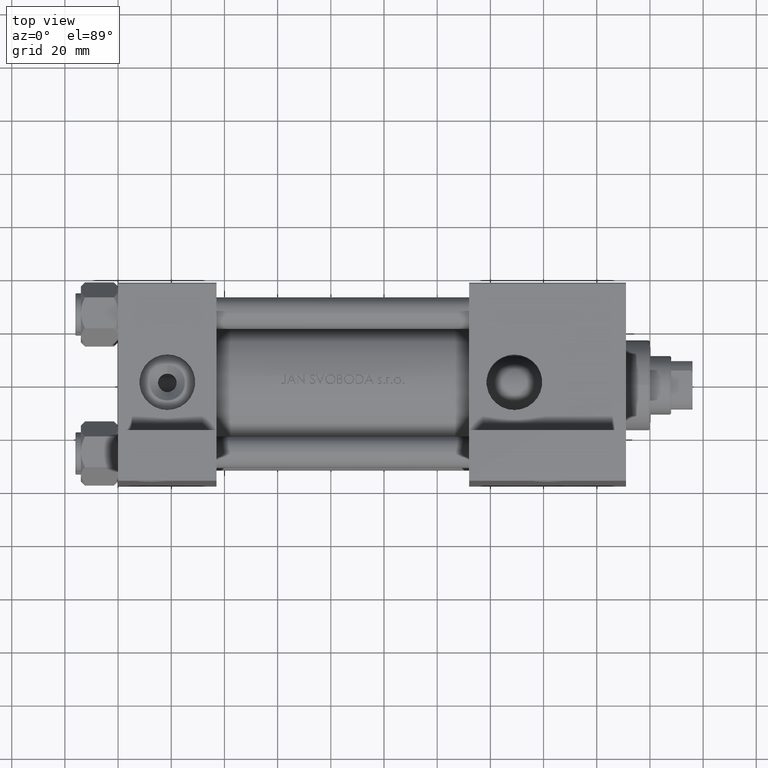
[diagram: clean part render]
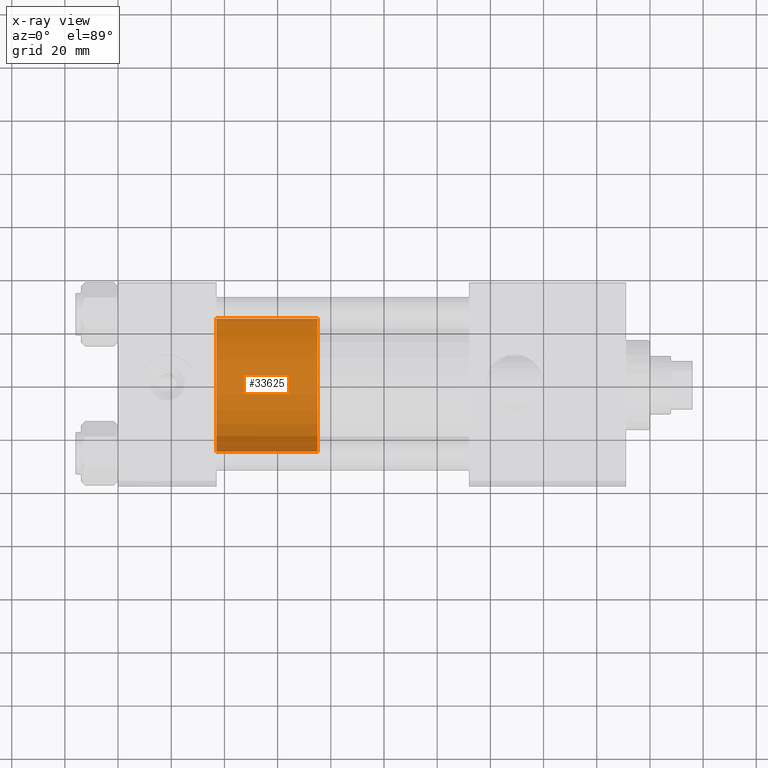
[diagram: x-ray — body ghosted, one internal face saturated and labeled with its STEP entity id]
A machine part, top view, then the same camera in x-ray: the body is ghosted and one INTERNAL B-rep face — a face not visible from any outside direction — is saturated and labeled: STEP entity #33625.
In plain terms, the highlighted cylindrical surface (partial cylindrical patch) has radius 25 mm, axis along (-1, 0, 0).
Its self-contained STEP definition (entity closure, byte-faithful):
#944 = DIRECTION ( 'NONE',  ( -0.000000000000000000, -0.000000000000000000, -1.000000000000000000 ) ) ;
#1497 = CARTESIAN_POINT ( 'NONE',  ( 0.000000000000000000, 0.000000000000000000, 38.00000000000000000 ) ) ;
#2960 = VERTEX_POINT ( 'NONE', #37292 ) ;
#3109 = VECTOR ( 'NONE', #13302, 1000.000000000000000 ) ;
#3384 = VECTOR ( 'NONE', #6064, 1000.000000000000000 ) ;
#3459 = CARTESIAN_POINT ( 'NONE',  ( 25.00000000000000000, 3.061616997868383043E-15, 38.00000000000000000 ) ) ;
#6064 = DIRECTION ( 'NONE',  ( -0.000000000000000000, -0.000000000000000000, -1.000000000000000000 ) ) ;
#7923 = DIRECTION ( 'NONE',  ( -1.000000000000000000, 0.000000000000000000, 0.000000000000000000 ) ) ;
#12243 = EDGE_CURVE ( 'NONE', #30046, #45989, #35740, .T. ) ;
#12803 = CARTESIAN_POINT ( 'NONE',  ( 25.00000000000000000, 3.061616997868383043E-15, 38.00000000000000000 ) ) ;
#12943 = DIRECTION ( 'NONE',  ( 1.000000000000000000, 0.000000000000000000, 0.000000000000000000 ) ) ;
#13302 = DIRECTION ( 'NONE',  ( -0.000000000000000000, -0.000000000000000000, -1.000000000000000000 ) ) ;
#15268 = CARTESIAN_POINT ( 'NONE',  ( -25.00000000000000000, 0.000000000000000000, 38.00000000000000000 ) ) ;
#15698 = DIRECTION ( 'NONE',  ( 0.000000000000000000, 0.000000000000000000, 1.000000000000000000 ) ) ;
#16725 = CIRCLE ( 'NONE', #44567, 25.00000000000000000 ) ;
#20924 = DIRECTION ( 'NONE',  ( 0.000000000000000000, 0.000000000000000000, 1.000000000000000000 ) ) ;
#24662 = CARTESIAN_POINT ( 'NONE',  ( 0.000000000000000000, 0.000000000000000000, 0.000000000000000000 ) ) ;
#26400 = ORIENTED_EDGE ( 'NONE', *, *, #36727, .F. ) ;
#28165 = DIRECTION ( 'NONE',  ( 1.000000000000000000, 0.000000000000000000, 0.000000000000000000 ) ) ;
#28850 = ORIENTED_EDGE ( 'NONE', *, *, #12243, .T. ) ;
#30046 = VERTEX_POINT ( 'NONE', #3459 ) ;
#33135 = EDGE_CURVE ( 'NONE', #45989, #2960, #16725, .T. ) ;
#33220 = CARTESIAN_POINT ( 'NONE',  ( 25.00000000000000000, 3.061616997868383043E-15, 0.000000000000000000 ) ) ;
#33625 = ADVANCED_FACE ( 'NONE', ( #46019 ), #35318, .T. ) ;
#35318 = CYLINDRICAL_SURFACE ( 'NONE', #46058, 25.00000000000000000 ) ;
#35740 = LINE ( 'NONE', #12803, #3109 ) ;
#36128 = EDGE_LOOP ( 'NONE', ( #26400, #28850, #36708, #47472 ) ) ;
#36708 = ORIENTED_EDGE ( 'NONE', *, *, #33135, .T. ) ;
#36727 = EDGE_CURVE ( 'NONE', #30046, #38453, #40623, .T. ) ;
#37292 = CARTESIAN_POINT ( 'NONE',  ( -25.00000000000000000, 0.000000000000000000, 0.000000000000000000 ) ) ;
#38453 = VERTEX_POINT ( 'NONE', #15268 ) ;
#39312 = CARTESIAN_POINT ( 'NONE',  ( 0.000000000000000000, 0.000000000000000000, 38.00000000000000000 ) ) ;
#40430 = CARTESIAN_POINT ( 'NONE',  ( -25.00000000000000000, 0.000000000000000000, 38.00000000000000000 ) ) ;
#40623 = CIRCLE ( 'NONE', #41405, 25.00000000000000000 ) ;
#41405 = AXIS2_PLACEMENT_3D ( 'NONE', #1497, #15698, #12943 ) ;
#44567 = AXIS2_PLACEMENT_3D ( 'NONE', #24662, #20924, #28165 ) ;
#45129 = EDGE_CURVE ( 'NONE', #38453, #2960, #47655, .T. ) ;
#45989 = VERTEX_POINT ( 'NONE', #33220 ) ;
#46019 = FACE_OUTER_BOUND ( 'NONE', #36128, .T. ) ;
#46058 = AXIS2_PLACEMENT_3D ( 'NONE', #39312, #944, #7923 ) ;
#47472 = ORIENTED_EDGE ( 'NONE', *, *, #45129, .F. ) ;
#47655 = LINE ( 'NONE', #40430, #3384 ) ;